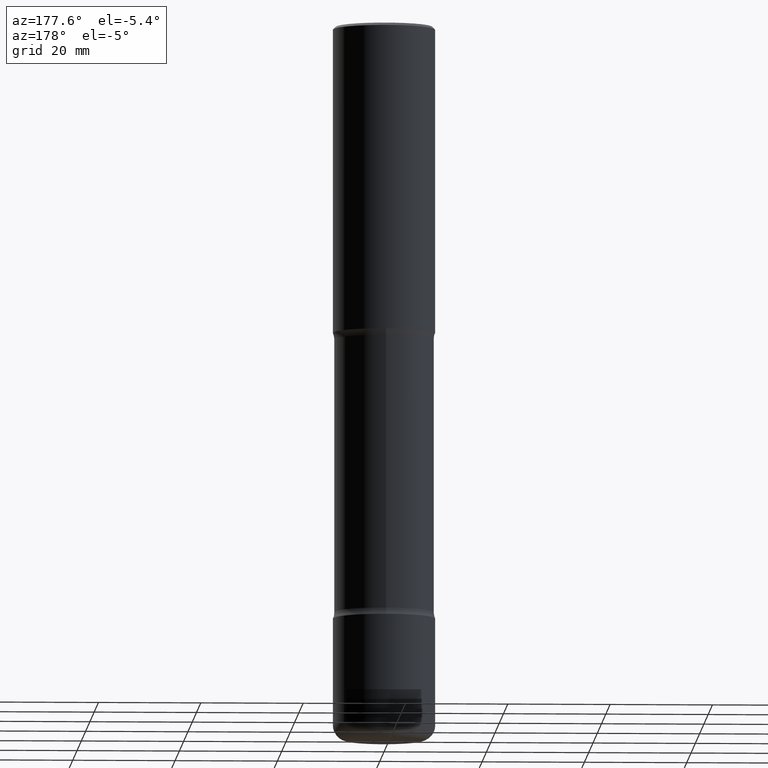
[diagram: clean part render]
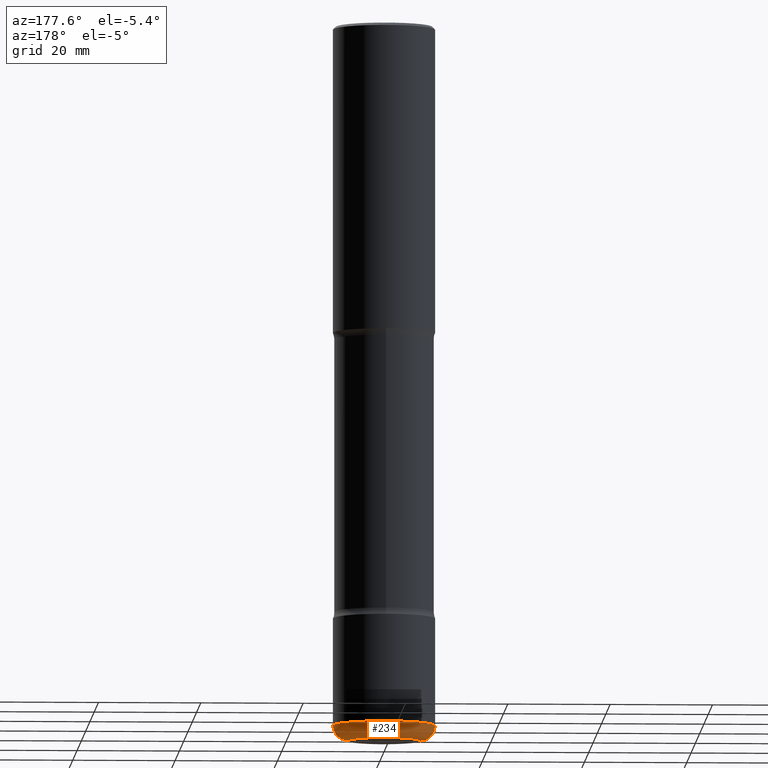
[diagram: same view with one face highlighted and labeled with its STEP entity id]
A machine part, auxiliary view. The second image highlights one B-rep face of the part: STEP entity #234.
In plain terms, the highlighted toroidal blend (fillet) surface has major radius 7.0002 mm and minor (blend) radius 2.9997 mm.
Its self-contained STEP definition (entity closure, byte-faithful):
#7 = AXIS2_PLACEMENT_3D ( 'NONE', #377, #38, #343 ) ;
#38 = DIRECTION ( 'NONE',  ( 7.105427357601001859E-15, 1.000000000000000000, -3.491481338843145583E-15 ) ) ;
#48 = DIRECTION ( 'NONE',  ( 1.000000000000000000, -6.982962677686269077E-15, 4.883557194083114022E-29 ) ) ;
#57 = CARTESIAN_POINT ( 'NONE',  ( 0.2756000000000004557, -2.075650741128861749E-14, -5.393700000000000827 ) ) ;
#59 = AXIS2_PLACEMENT_3D ( 'NONE', #265, #224, #103 ) ;
#74 = CARTESIAN_POINT ( 'NONE',  ( 0.3937000000000002164, -2.158119530352336260E-14, -5.393700000000000827 ) ) ;
#81 = FACE_OUTER_BOUND ( 'NONE', #460, .T. ) ;
#100 = CIRCLE ( 'NONE', #236, 0.2756000000000004557 ) ;
#103 = DIRECTION ( 'NONE',  ( 1.000000000000000000, -6.982962677686269866E-15, 0.000000000000000000 ) ) ;
#112 = VERTEX_POINT ( 'NONE', #74 ) ;
#165 = DIRECTION ( 'NONE',  ( 1.000000000000000000, -6.982962677686269077E-15, 0.000000000000000000 ) ) ;
#167 = CARTESIAN_POINT ( 'NONE',  ( 1.347893496593123646E-28, -1.924434684343564878E-14, -5.511800000000000033 ) ) ;
#170 = VERTEX_POINT ( 'NONE', #196 ) ;
#196 = CARTESIAN_POINT ( 'NONE',  ( -0.3937000000000002164, -1.603459614663076223E-14, -5.393700000000000827 ) ) ;
#208 = AXIS2_PLACEMENT_3D ( 'NONE', #57, #226, #403 ) ;
#224 = DIRECTION ( 'NONE',  ( -2.445468806185136597E-29, 3.491481338843145583E-15, 1.000000000000000000 ) ) ;
#226 = DIRECTION ( 'NONE',  ( -6.982962677686266711E-15, -1.000000000000000000, 3.491481338843145583E-15 ) ) ;
#233 = CARTESIAN_POINT ( 'NONE',  ( 0.2756000000000004557, -2.116885135740598689E-14, -5.511800000000000033 ) ) ;
#234 = ADVANCED_FACE ( 'NONE', ( #81 ), #473, .T. ) ;
#236 = AXIS2_PLACEMENT_3D ( 'NONE', #167, #336, #165 ) ;
#245 = EDGE_CURVE ( 'NONE', #523, #170, #297, .T. ) ;
#252 = ORIENTED_EDGE ( 'NONE', *, *, #245, .T. ) ;
#255 = CARTESIAN_POINT ( 'NONE',  ( 1.319012509992077371E-28, -1.883200289731827938E-14, -5.393700000000000827 ) ) ;
#265 = CARTESIAN_POINT ( 'NONE',  ( 1.319012509992077371E-28, -1.883200289731827938E-14, -5.393700000000000827 ) ) ;
#297 = CIRCLE ( 'NONE', #7, 0.1180999999999994832 ) ;
#301 = CARTESIAN_POINT ( 'NONE',  ( -0.2756000000000004557, -1.666034360515578958E-14, -5.511800000000000033 ) ) ;
#319 = ORIENTED_EDGE ( 'NONE', *, *, #472, .T. ) ;
#336 = DIRECTION ( 'NONE',  ( -2.445468806185136597E-29, 3.491481338843145583E-15, 1.000000000000000000 ) ) ;
#338 = ORIENTED_EDGE ( 'NONE', *, *, #352, .F. ) ;
#343 = DIRECTION ( 'NONE',  ( -1.000000000000000000, 7.105427357601001859E-15, 0.000000000000000000 ) ) ;
#352 = EDGE_CURVE ( 'NONE', #112, #170, #461, .T. ) ;
#367 = VERTEX_POINT ( 'NONE', #233 ) ;
#371 = AXIS2_PLACEMENT_3D ( 'NONE', #255, #554, #48 ) ;
#377 = CARTESIAN_POINT ( 'NONE',  ( -0.2756000000000004557, -1.687374711756343806E-14, -5.393700000000000827 ) ) ;
#403 = DIRECTION ( 'NONE',  ( 1.000000000000000000, -6.982962677686270655E-15, 0.000000000000000000 ) ) ;
#430 = EDGE_CURVE ( 'NONE', #367, #112, #528, .T. ) ;
#460 = EDGE_LOOP ( 'NONE', ( #319, #252, #338, #504 ) ) ;
#461 = CIRCLE ( 'NONE', #59, 0.3937000000000004940 ) ;
#472 = EDGE_CURVE ( 'NONE', #367, #523, #100, .T. ) ;
#473 = TOROIDAL_SURFACE ( 'NONE', #371, 0.2756000000000004557, 0.1180999999999994832 ) ;
#504 = ORIENTED_EDGE ( 'NONE', *, *, #430, .F. ) ;
#523 = VERTEX_POINT ( 'NONE', #301 ) ;
#528 = CIRCLE ( 'NONE', #208, 0.1180999999999994832 ) ;
#554 = DIRECTION ( 'NONE',  ( -2.445468806185136597E-29, 3.491481338843145583E-15, 1.000000000000000000 ) ) ;